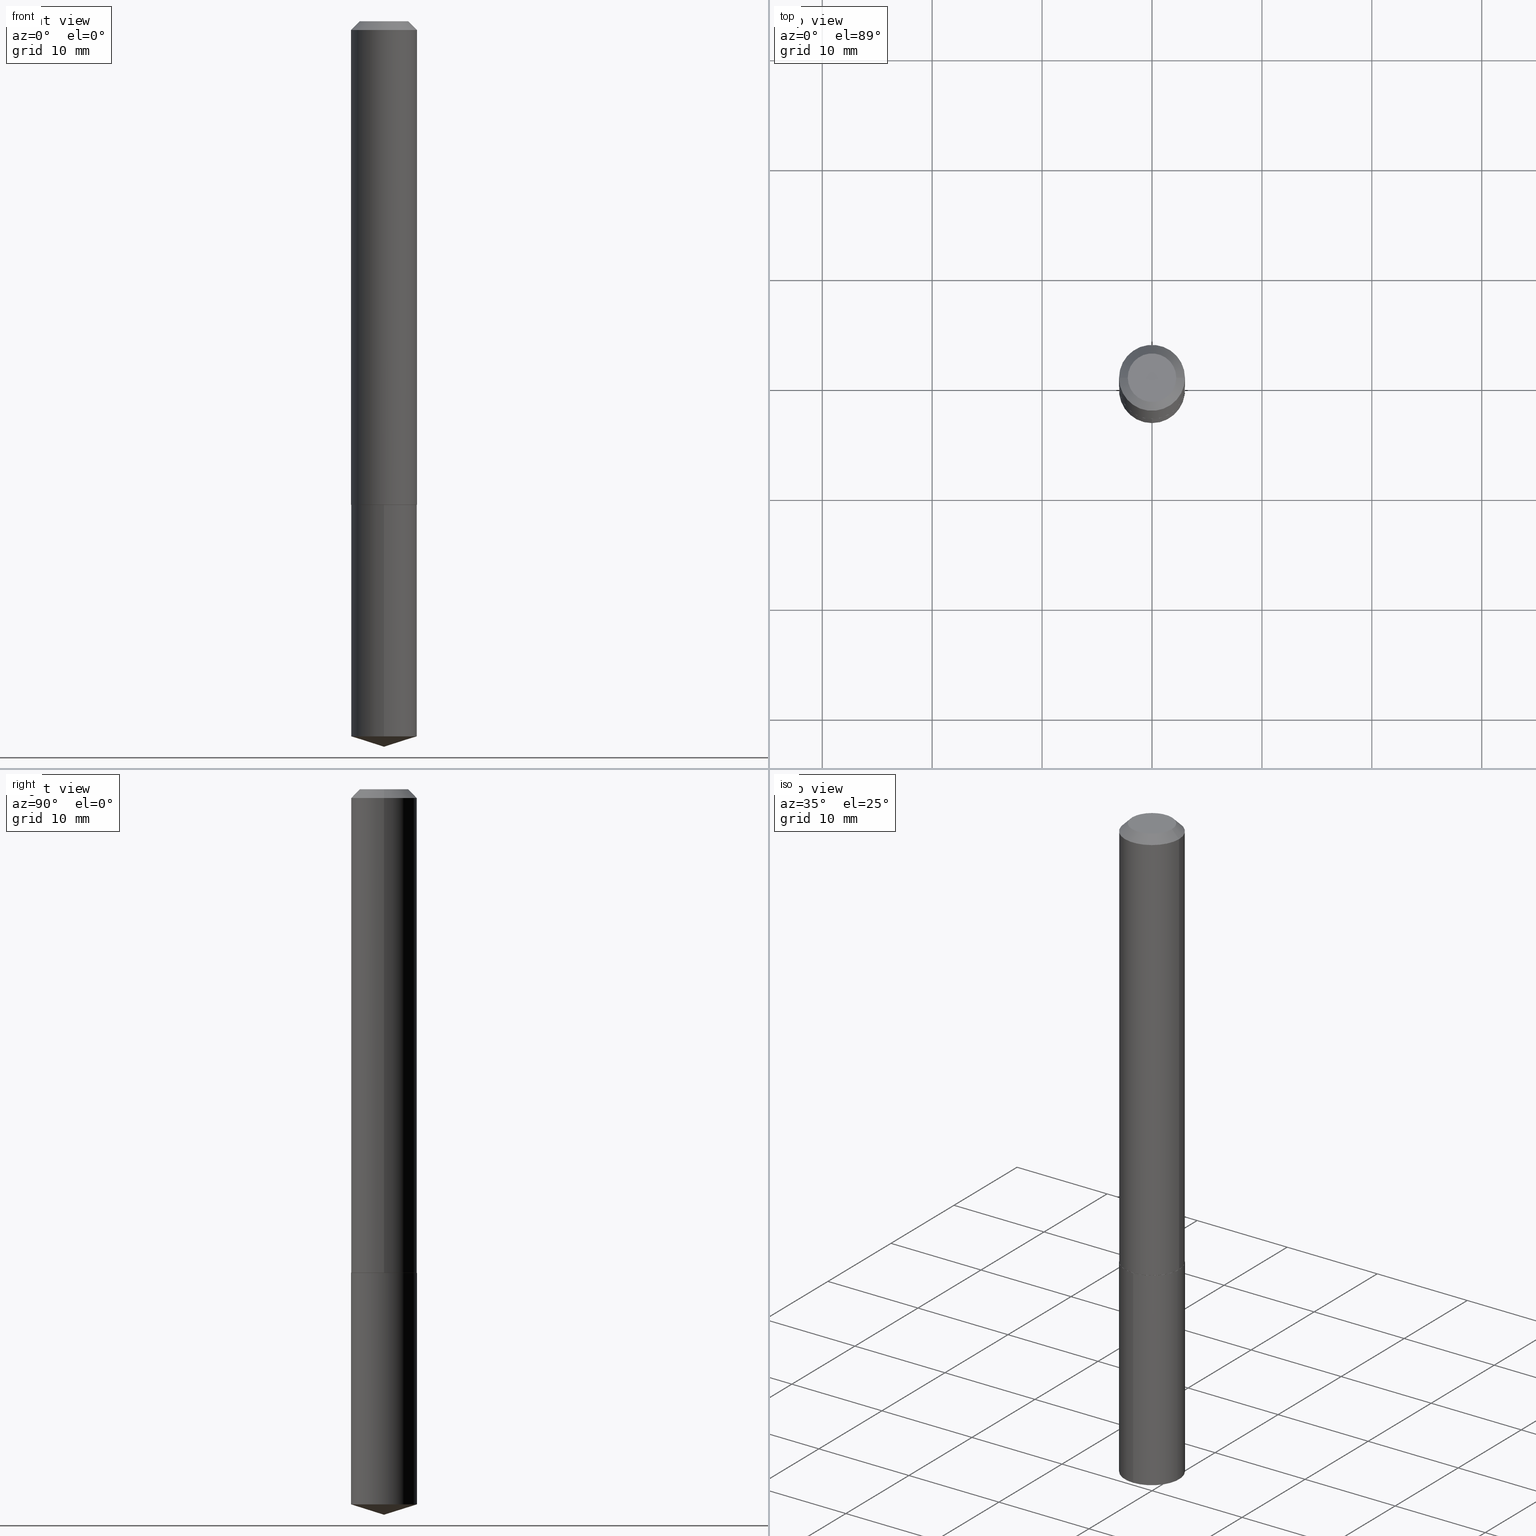
[diagram: canonical four-view strip — front | top / right | iso, engineering-drawing reading convention]
A machine part, canonical four-view strip (front | top / right | iso — engineering-drawing reading convention). The complete STEP part file that produces these views, byte-faithful:
ISO-10303-21;
HEADER;
FILE_DESCRIPTION (( 'STEP AP203' ),
    '1' );
FILE_NAME ('50017.STEP',
    '2024-04-22T18:10:48',
    ( '' ),
    ( '' ),
    'SwSTEP 2.0',
    'SolidWorks 2023',
    '' );
FILE_SCHEMA (( 'CONFIG_CONTROL_DESIGN' ));
ENDSEC;

DATA;
#1 = DIRECTION ( 'NONE',  ( -2.445468806185136597E-29, 3.491481338843145583E-15, 1.000000000000000000 ) ) ;
#2 = DIRECTION ( 'NONE',  ( -2.446120480058821266E-29, 3.490548104765055762E-15, 1.000000000000000000 ) ) ;
#3 = EDGE_CURVE ( 'NONE', #235, #177, #279, .T. ) ;
#4 = EDGE_CURVE ( 'NONE', #62, #379, #165, .T. ) ;
#5 = PRODUCT ( '50017', '50017', '', ( #143 ) ) ;
#6 = CARTESIAN_POINT ( 'NONE',  ( 6.355999455384841064E-29, -9.069840195421522145E-15, -2.598400000000000265 ) ) ;
#7 = CIRCLE ( 'NONE', #189, 0.1180999999999999966 ) ;
#8 = LOCAL_TIME ( 14, 10, 48.00000000000000000, #328 ) ;
#9 = DIRECTION ( 'NONE',  ( -6.982962677686265922E-15, -1.000000000000000000, 4.626330217890369336E-15 ) ) ;
#10 = CARTESIAN_POINT ( 'NONE',  ( -8.246878922347056641E-16, -0.1181000000000060474, -1.732199999999999074 ) ) ;
#11 = DIRECTION ( 'NONE',  ( -2.446120480058821266E-29, 3.490548104765055762E-15, 1.000000000000000000 ) ) ;
#12 = APPROVAL ( #345, 'UNSPECIFIED' ) ;
#13 = AXIS2_PLACEMENT_3D ( 'NONE', #268, #383, #202 ) ;
#14 = DIRECTION ( 'NONE',  ( 1.000000000000000000, -6.982962677686269077E-15, 0.000000000000000000 ) ) ;
#15 = ADVANCED_FACE ( 'NONE', ( #334 ), #88, .F. ) ;
#16 = DATE_AND_TIME ( #27, #342 ) ;
#17 = EDGE_CURVE ( 'NONE', #121, #50, #291, .T. ) ;
#18 = LINE ( 'NONE', #112, #36 ) ;
#19 = VERTEX_POINT ( 'NONE', #307 ) ;
#20 = DIRECTION ( 'NONE',  ( 1.000000000000000000, -6.982962677686267499E-15, 0.000000000000000000 ) ) ;
#21 = ORIENTED_EDGE ( 'NONE', *, *, #214, .F. ) ;
#22 = AXIS2_PLACEMENT_3D ( 'NONE', #213, #2, #188 ) ;
#23 = VECTOR ( 'NONE', #131, 39.37007874015748143 ) ;
#24 = PERSON_AND_ORGANIZATION_ROLE ( 'classification_officer' ) ;
#25 = CARTESIAN_POINT ( 'NONE',  ( 4.236041066073891926E-29, -6.047943975144094411E-15, -1.732199999999999296 ) ) ;
#26 = ORIENTED_EDGE ( 'NONE', *, *, #146, .T. ) ;
#27 = CALENDAR_DATE ( 2024, 22, 4 ) ;
#28 = DIRECTION ( 'NONE',  ( 1.000000000000000000, -6.982962677686266711E-15, 4.876176775795935793E-29 ) ) ;
#29 = EDGE_LOOP ( 'NONE', ( #171, #178 ) ) ;
#30 = CIRCLE ( 'NONE', #237, 0.1176000000000001350 ) ;
#31 = ORIENTED_EDGE ( 'NONE', *, *, #63, .F. ) ;
#32 = EDGE_CURVE ( 'NONE', #324, #19, #300, .T. ) ;
#33 = CARTESIAN_POINT ( 'NONE',  ( 4.236041066073892487E-29, -6.047943975144095988E-15, -1.732199999999999518 ) ) ;
#34 = DIRECTION ( 'NONE',  ( -2.445468806185136597E-29, 3.491481338843145583E-15, 1.000000000000000000 ) ) ;
#35 = CLOSED_SHELL ( 'NONE', ( #367, #339, #90, #119, #15 ) ) ;
#36 = VECTOR ( 'NONE', #136, 39.37007874015748143 ) ;
#37 = ADVANCED_FACE ( 'NONE', ( #64 ), #216, .T. ) ;
#38 = CARTESIAN_POINT ( 'NONE',  ( 0.1181000000000002187, -6.870886126709424325E-15, -1.731699999999999795 ) ) ;
#39 = ADVANCED_FACE ( 'NONE', ( #364 ), #309, .T. ) ;
#40 = ADVANCED_BREP_SHAPE_REPRESENTATION ( '50017', ( #327, #193, #248 ), #253 ) ;
#41 = CARTESIAN_POINT ( 'NONE',  ( 6.263784958690239673E-29, -8.941479947317758839E-15, -2.561163213033392783 ) ) ;
#42 = EDGE_CURVE ( 'NONE', #177, #82, #207, .T. ) ;
#43 = CARTESIAN_POINT ( 'NONE',  ( 0.1180999999999999966, -9.193336053756670343E-16, -0.03125000000000021511 ) ) ;
#44 = CIRCLE ( 'NONE', #266, 0.1180999999999999966 ) ;
#45 = DIRECTION ( 'NONE',  ( 1.000000000000000000, -6.982962677686266711E-15, 0.000000000000000000 ) ) ;
#46 = CARTESIAN_POINT ( 'NONE',  ( -0.1180999999999999966, 7.155791003958990633E-16, -0.03125000000000021511 ) ) ;
#47 = ORIENTED_EDGE ( 'NONE', *, *, #4, .F. ) ;
#48 = FACE_OUTER_BOUND ( 'NONE', #86, .T. ) ;
#49 = ADVANCED_FACE ( 'NONE', ( #313 ), #69, .T. ) ;
#50 = VERTEX_POINT ( 'NONE', #335 ) ;
#51 = ADVANCED_FACE ( 'NONE', ( #365 ), #139, .T. ) ;
#52 = CIRCLE ( 'NONE', #363, 0.1180999999999999966 ) ;
#53 = APPLICATION_PROTOCOL_DEFINITION ( 'international standard', 'config_control_design', 1994, #264 ) ;
#54 = ORIENTED_EDGE ( 'NONE', *, *, #224, .T. ) ;
#55 = SECURITY_CLASSIFICATION_LEVEL ( 'unclassified' ) ;
#56 = CYLINDRICAL_SURFACE ( 'NONE', #13, 0.1180999999999999966 ) ;
#57 = ORIENTED_EDGE ( 'NONE', *, *, #76, .T. ) ;
#58 = AXIS2_PLACEMENT_3D ( 'NONE', #294, #296, #378 ) ;
#59 = PERSON_AND_ORGANIZATION ( #290, #166 ) ;
#60 = PRODUCT_RELATED_PRODUCT_CATEGORY ( 'detail', '', ( #5 ) ) ;
#61 = EDGE_LOOP ( 'NONE', ( #122, #376, #308, #358 ) ) ;
#62 = VERTEX_POINT ( 'NONE', #370 ) ;
#63 = EDGE_CURVE ( 'NONE', #121, #82, #336, .T. ) ;
#64 = FACE_OUTER_BOUND ( 'NONE', #226, .T. ) ;
#65 = CC_DESIGN_PERSON_AND_ORGANIZATION_ASSIGNMENT ( #323, #298, ( #5 ) ) ;
#66 = EDGE_LOOP ( 'NONE', ( #200, #180, #326, #174 ) ) ;
#67 = CARTESIAN_POINT ( 'NONE',  ( 0.000000000000000000, 0.000000000000000000, 0.000000000000000000 ) ) ;
#68 = DIRECTION ( 'NONE',  ( -1.000000000000000000, 6.982962677686266711E-15, 0.000000000000000000 ) ) ;
#69 = CYLINDRICAL_SURFACE ( 'NONE', #107, 0.1181000000000001077 ) ;
#70 = DIRECTION ( 'NONE',  ( -2.445468806185136597E-29, 3.491481338843145583E-15, 1.000000000000000000 ) ) ;
#71 = EDGE_CURVE ( 'NONE', #82, #208, #315, .T. ) ;
#72 = AXIS2_PLACEMENT_3D ( 'NONE', #175, #275, #120 ) ;
#73 = CONICAL_SURFACE ( 'NONE', #306, 0.1181000000000002187, 0.7853981633979093546 ) ;
#74 = DIRECTION ( 'NONE',  ( -6.982962677686265922E-15, -1.000000000000000000, 4.626330217890369336E-15 ) ) ;
#75 = DIRECTION ( 'NONE',  ( -2.445468806185136597E-29, 3.491481338843145583E-15, 1.000000000000000000 ) ) ;
#76 = EDGE_CURVE ( 'NONE', #50, #121, #195, .T. ) ;
#77 = DIRECTION ( 'NONE',  ( -1.000000000000000000, 6.982962677686265922E-15, -4.876176775795935793E-29 ) ) ;
#78 = DIRECTION ( 'NONE',  ( -2.445468806185136597E-29, 3.491481338843145583E-15, 1.000000000000000000 ) ) ;
#79 = CC_DESIGN_PERSON_AND_ORGANIZATION_ASSIGNMENT ( #169, #104, ( #271 ) ) ;
#80 = AXIS2_PLACEMENT_3D ( 'NONE', #102, #258, #170 ) ;
#81 = CALENDAR_DATE ( 2024, 22, 4 ) ;
#82 = VERTEX_POINT ( 'NONE', #338 ) ;
#83 = APPROVAL_STATUS ( 'not_yet_approved' ) ;
#84 = FACE_OUTER_BOUND ( 'NONE', #297, .T. ) ;
#85 = ORIENTED_EDGE ( 'NONE', *, *, #118, .F. ) ;
#86 = EDGE_LOOP ( 'NONE', ( #92, #47 ) ) ;
#87 = PERSON_AND_ORGANIZATION ( #290, #166 ) ;
#88 = PLANE ( 'NONE',  #380 ) ;
#89 = EDGE_CURVE ( 'NONE', #147, #324, #316, .T. ) ;
#90 = ADVANCED_FACE ( 'NONE', ( #246 ), #347, .T. ) ;
#91 = ORIENTED_EDGE ( 'NONE', *, *, #63, .T. ) ;
#92 = ORIENTED_EDGE ( 'NONE', *, *, #329, .F. ) ;
#93 = AXIS2_PLACEMENT_3D ( 'NONE', #179, #1, #241 ) ;
#94 = ORIENTED_EDGE ( 'NONE', *, *, #4, .T. ) ;
#95 = CARTESIAN_POINT ( 'NONE',  ( 0.1181000000000002187, -6.870886126709424325E-15, -1.731699999999999795 ) ) ;
#96 = CYLINDRICAL_SURFACE ( 'NONE', #211, 0.1180999999999999966 ) ;
#97 = PRODUCT_DEFINITION_FORMATION_WITH_SPECIFIED_SOURCE ( 'ANY', '', #5, .NOT_KNOWN. ) ;
#98 = DIRECTION ( 'NONE',  ( -2.445468806185136877E-29, 3.491481338843145188E-15, 1.000000000000000000 ) ) ;
#99 = CARTESIAN_POINT ( 'NONE',  ( 6.356019252389038443E-29, -9.069840195421522145E-15, -2.598400000000000265 ) ) ;
#100 = CARTESIAN_POINT ( 'NONE',  ( -0.1180999999999999966, -2.238502542224082018E-15, -0.03125000000000021511 ) ) ;
#101 = LOCAL_TIME ( 14, 10, 48.00000000000000000, #201 ) ;
#102 = CARTESIAN_POINT ( 'NONE',  ( 7.045915830409125999E-29, -2.024043384476385914E-15, -1.732199999999999518 ) ) ;
#103 = EDGE_CURVE ( 'NONE', #360, #324, #7, .T. ) ;
#104 = PERSON_AND_ORGANIZATION_ROLE ( 'creator' ) ;
#105 = CARTESIAN_POINT ( 'NONE',  ( -0.1181000000000002187, -5.207047263541994710E-15, -1.731699999999999795 ) ) ;
#106 = PERSON_AND_ORGANIZATION ( #290, #166 ) ;
#107 = AXIS2_PLACEMENT_3D ( 'NONE', #67, #162, #249 ) ;
#108 = CARTESIAN_POINT ( 'NONE',  ( 8.391509709327409115E-16, 0.1180999999999910316, -2.561163213033393227 ) ) ;
#109 = APPROVAL_PERSON_ORGANIZATION ( #106, #388, #199 ) ;
#110 = ORIENTED_EDGE ( 'NONE', *, *, #76, .F. ) ;
#111 = APPROVAL_STATUS ( 'not_yet_approved' ) ;
#112 = CARTESIAN_POINT ( 'NONE',  ( -8.246878922347056641E-16, -0.1181000000000060474, -1.732199999999999074 ) ) ;
#113 = APPLICATION_CONTEXT ( 'configuration controlled 3d designs of mechanical parts and assemblies' ) ;
#114 = APPLICATION_PROTOCOL_DEFINITION ( 'international standard', 'config_control_design', 1994, #113 ) ;
#115 = CARTESIAN_POINT ( 'NONE',  ( 0.000000000000000000, 0.000000000000000000, 0.000000000000000000 ) ) ;
#116 = ORIENTED_EDGE ( 'NONE', *, *, #206, .T. ) ;
#117 = ORIENTED_EDGE ( 'NONE', *, *, #3, .F. ) ;
#118 = EDGE_CURVE ( 'NONE', #50, #208, #126, .T. ) ;
#119 = ADVANCED_FACE ( 'NONE', ( #129 ), #96, .T. ) ;
#120 = DIRECTION ( 'NONE',  ( 1.000000000000000000, -6.982962677686267499E-15, 0.000000000000000000 ) ) ;
#121 = VERTEX_POINT ( 'NONE', #284 ) ;
#122 = ORIENTED_EDGE ( 'NONE', *, *, #148, .F. ) ;
#123 = DIRECTION ( 'NONE',  ( -2.445468806185136597E-29, 3.491481338843145583E-15, 1.000000000000000000 ) ) ;
#124 = CC_DESIGN_DATE_AND_TIME_ASSIGNMENT ( #256, #227, ( #127 ) ) ;
#125 = CARTESIAN_POINT ( 'NONE',  ( -0.1181000000000001077, 8.391509709326790846E-16, -5.809262341591049389E-30 ) ) ;
#126 = LINE ( 'NONE', #46, #381 ) ;
#127 = SECURITY_CLASSIFICATION ( '', '', #55 ) ;
#128 = AXIS2_PLACEMENT_3D ( 'NONE', #261, #232, #344 ) ;
#129 = FACE_OUTER_BOUND ( 'NONE', #295, .T. ) ;
#130 = CARTESIAN_POINT ( 'NONE',  ( 7.642090019328603538E-31, -1.091087918388490390E-16, -0.03125000000000021511 ) ) ;
#131 = DIRECTION ( 'NONE',  ( -2.445468806185136877E-29, 3.491481338843145188E-15, 1.000000000000000000 ) ) ;
#132 = CC_DESIGN_PERSON_AND_ORGANIZATION_ASSIGNMENT ( #59, #233, ( #97 ) ) ;
#133 = COORDINATED_UNIVERSAL_TIME_OFFSET ( 5, 0, .BEHIND. ) ;
#134 = LENGTH_MEASURE_WITH_UNIT ( LENGTH_MEASURE( 0.02539999999999999897 ), #173 );
#135 = PERSON_AND_ORGANIZATION ( #290, #166 ) ;
#136 = DIRECTION ( 'NONE',  ( -2.446120480058821547E-29, 3.490548104765055762E-15, 1.000000000000000000 ) ) ;
#137 = ORIENTED_EDGE ( 'NONE', *, *, #42, .F. ) ;
#138 = COORDINATED_UNIVERSAL_TIME_OFFSET ( 5, 0, .BEHIND. ) ;
#139 = CONICAL_SURFACE ( 'NONE', #252, 0.1180999999999999966, 0.7853981633974449483 ) ;
#140 = CARTESIAN_POINT ( 'NONE',  ( -8.246878922346854496E-16, -0.1181000000000089617, -2.561163213033392339 ) ) ;
#141 = ORIENTED_EDGE ( 'NONE', *, *, #242, .T. ) ;
#142 = CALENDAR_DATE ( 2024, 22, 4 ) ;
#143 = MECHANICAL_CONTEXT ( 'NONE', #264, 'mechanical' ) ;
#144 = ORIENTED_EDGE ( 'NONE', *, *, #255, .F. ) ;
#145 = PERSON_AND_ORGANIZATION_ROLE ( 'creator' ) ;
#146 = EDGE_CURVE ( 'NONE', #379, #177, #311, .T. ) ;
#147 = VERTEX_POINT ( 'NONE', #6 ) ;
#148 = EDGE_CURVE ( 'NONE', #235, #208, #282, .T. ) ;
#149 = ORIENTED_EDGE ( 'NONE', *, *, #148, .T. ) ;
#150 = CIRCLE ( 'NONE', #292, 0.1180999999999999966 ) ;
#151 = APPROVAL ( #111, 'UNSPECIFIED' ) ;
#152 = CARTESIAN_POINT ( 'NONE',  ( 8.391509709327204997E-16, 0.1180999999999939598, -1.732200000000000184 ) ) ;
#153 = ORIENTED_EDGE ( 'NONE', *, *, #214, .T. ) ;
#154 = CC_DESIGN_DATE_AND_TIME_ASSIGNMENT ( #205, #269, ( #271 ) ) ;
#155 = DIRECTION ( 'NONE',  ( -2.446120480058821547E-29, 3.490548104765055762E-15, 1.000000000000000000 ) ) ;
#156 = VECTOR ( 'NONE', #283, 39.37007874015748143 ) ;
#157 = CARTESIAN_POINT ( 'NONE',  ( -1.665128563525584940E-46, 2.377362283918716598E-32, 6.809036203259281235E-18 ) ) ;
#158 = DIRECTION ( 'NONE',  ( 6.776566513254257349E-15, 0.9537169507482289310, 0.3007057995042669574 ) ) ;
#159 = CARTESIAN_POINT ( 'NONE',  ( 4.236041066073892487E-29, -6.047943975144095988E-15, -1.732199999999999518 ) ) ;
#160 = CC_DESIGN_APPROVAL ( #151, ( #127 ) ) ;
#161 = FACE_OUTER_BOUND ( 'NONE', #322, .T. ) ;
#162 = DIRECTION ( 'NONE',  ( -2.445468806185136597E-29, 3.491481338843145583E-15, 1.000000000000000000 ) ) ;
#163 =( NAMED_UNIT ( * ) PLANE_ANGLE_UNIT ( ) SI_UNIT ( $, .RADIAN. ) );
#164 = EDGE_LOOP ( 'NONE', ( #303, #352, #387, #230 ) ) ;
#165 = CIRCLE ( 'NONE', #247, 0.1176000000000001350 ) ;
#166 = ORGANIZATION ( 'UNSPECIFIED', 'UNSPECIFIED', '' ) ;
#167 = FACE_OUTER_BOUND ( 'NONE', #66, .T. ) ;
#168 = ORIENTED_EDGE ( 'NONE', *, *, #186, .T. ) ;
#169 = PERSON_AND_ORGANIZATION ( #290, #166 ) ;
#170 = DIRECTION ( 'NONE',  ( 1.000000000000000000, -6.982962677686265922E-15, 4.876176775795935793E-29 ) ) ;
#171 = ORIENTED_EDGE ( 'NONE', *, *, #286, .T. ) ;
#172 = PERSON_AND_ORGANIZATION ( #290, #166 ) ;
#173 =( LENGTH_UNIT ( ) NAMED_UNIT ( * ) SI_UNIT ( $, .METRE. ) );
#174 = ORIENTED_EDGE ( 'NONE', *, *, #242, .F. ) ;
#175 = CARTESIAN_POINT ( 'NONE',  ( 4.234818331670800246E-29, -6.046198234474674485E-15, -1.731699999999999795 ) ) ;
#176 = CALENDAR_DATE ( 2024, 22, 4 ) ;
#177 = VERTEX_POINT ( 'NONE', #95 ) ;
#178 = ORIENTED_EDGE ( 'NONE', *, *, #255, .T. ) ;
#179 = CARTESIAN_POINT ( 'NONE',  ( 4.234818331670800246E-29, -6.046198234474674485E-15, -1.731699999999999795 ) ) ;
#180 = ORIENTED_EDGE ( 'NONE', *, *, #32, .T. ) ;
#181 = DIRECTION ( 'NONE',  ( -2.445468806185136597E-29, 3.491481338843145583E-15, 1.000000000000000000 ) ) ;
#182 = AXIS2_PLACEMENT_3D ( 'NONE', #225, #222, #77 ) ;
#183 = PRODUCT_DEFINITION_SHAPE ( 'NONE', 'NONE',  #271 ) ;
#184 = ADVANCED_FACE ( 'NONE', ( #161 ), #221, .T. ) ;
#185 = DIRECTION ( 'NONE',  ( -2.445468806185136597E-29, 3.491481338843145583E-15, 1.000000000000000000 ) ) ;
#186 = EDGE_CURVE ( 'NONE', #147, #360, #340, .T. ) ;
#187 = CARTESIAN_POINT ( 'NONE',  ( 7.642090019328603538E-31, -1.091087918388490390E-16, -0.03125000000000021511 ) ) ;
#188 = DIRECTION ( 'NONE',  ( -6.982962677686265922E-15, -1.000000000000000000, 3.500519750498701277E-15 ) ) ;
#189 = AXIS2_PLACEMENT_3D ( 'NONE', #41, #312, #366 ) ;
#190 = VECTOR ( 'NONE', #346, 39.37007874015748143 ) ;
#191 = DIRECTION ( 'NONE',  ( 1.000000000000000000, -6.982962677686266711E-15, 4.875959881687004012E-29 ) ) ;
#192 = CARTESIAN_POINT ( 'NONE',  ( 4.234818331670800246E-29, -6.046198234474674485E-15, -1.731699999999999795 ) ) ;
#193 = MANIFOLD_SOLID_BREP ( 'Body-Move/Copy2[2]', #305 ) ;
#194 = PLANE ( 'NONE',  #80 ) ;
#195 = CIRCLE ( 'NONE', #273, 0.08684999999999999665 ) ;
#196 = CIRCLE ( 'NONE', #58, 0.1181000000000002187 ) ;
#197 = DIRECTION ( 'NONE',  ( -6.982962677686265922E-15, -1.000000000000000000, 3.500519750498701277E-15 ) ) ;
#198 = VERTEX_POINT ( 'NONE', #10 ) ;
#199 = APPROVAL_ROLE ( '' ) ;
#200 = ORIENTED_EDGE ( 'NONE', *, *, #103, .T. ) ;
#201 = COORDINATED_UNIVERSAL_TIME_OFFSET ( 5, 0, .BEHIND. ) ;
#202 = DIRECTION ( 'NONE',  ( -6.982962677686265922E-15, -1.000000000000000000, 4.626330217890369336E-15 ) ) ;
#203 = LOCAL_TIME ( 14, 10, 48.00000000000000000, #133 ) ;
#204 = EDGE_LOOP ( 'NONE', ( #54, #149, #244, #137 ) ) ;
#205 = DATE_AND_TIME ( #176, #285 ) ;
#206 = EDGE_CURVE ( 'NONE', #208, #82, #150, .T. ) ;
#207 = LINE ( 'NONE', #330, #373 ) ;
#208 = VERTEX_POINT ( 'NONE', #100 ) ;
#209 = AXIS2_PLACEMENT_3D ( 'NONE', #333, #361, #362 ) ;
#210 = ORIENTED_EDGE ( 'NONE', *, *, #118, .T. ) ;
#211 = AXIS2_PLACEMENT_3D ( 'NONE', #159, #11, #9 ) ;
#212 = CARTESIAN_POINT ( 'NONE',  ( 4.236041066073891926E-29, -6.047943975144094411E-15, -1.732199999999999296 ) ) ;
#213 = CARTESIAN_POINT ( 'NONE',  ( -8.994908528192677186E-28, 1.283516969874161106E-13, 36.77167874015748339 ) ) ;
#214 = EDGE_CURVE ( 'NONE', #324, #360, #44, .T. ) ;
#215 = CARTESIAN_POINT ( 'NONE',  ( 7.642090019328603538E-31, -1.091087918388490390E-16, -0.03125000000000021511 ) ) ;
#216 = CONICAL_SURFACE ( 'NONE', #93, 0.1181000000000002187, 0.7853981633979093546 ) ;
#217 = VECTOR ( 'NONE', #245, 39.37007874015748143 ) ;
#218 = DIRECTION ( 'NONE',  ( 2.445468806185136597E-29, -3.491481338843145583E-15, -1.000000000000000000 ) ) ;
#219 = DIRECTION ( 'NONE',  ( 2.445468806185136597E-29, -3.491481338843145583E-15, -1.000000000000000000 ) ) ;
#220 = CARTESIAN_POINT ( 'NONE',  ( 6.263784958690239673E-29, -8.941479947317758839E-15, -2.561163213033392783 ) ) ;
#221 = CONICAL_SURFACE ( 'NONE', #243, 0.1180999999999999966, 0.7853981633974449483 ) ;
#222 = DIRECTION ( 'NONE',  ( 2.438088387897960049E-29, -3.491481338843145188E-15, -1.000000000000000000 ) ) ;
#223 = DIRECTION ( 'NONE',  ( -6.982962677686265922E-15, -1.000000000000000000, 4.626330217890369336E-15 ) ) ;
#224 = EDGE_CURVE ( 'NONE', #177, #235, #196, .T. ) ;
#225 = CARTESIAN_POINT ( 'NONE',  ( -8.325642817627924699E-47, 1.188681141959358299E-32, 3.404518101629640617E-18 ) ) ;
#226 = EDGE_LOOP ( 'NONE', ( #238, #94, #26, #117 ) ) ;
#227 = DATE_TIME_ROLE ( 'classification_date' ) ;
#228 = CC_DESIGN_SECURITY_CLASSIFICATION ( #127, ( #97 ) ) ;
#229 = FACE_OUTER_BOUND ( 'NONE', #270, .T. ) ;
#230 = ORIENTED_EDGE ( 'NONE', *, *, #146, .F. ) ;
#231 = DATE_AND_TIME ( #81, #101 ) ;
#232 = DIRECTION ( 'NONE',  ( -2.446120480058821266E-29, 3.490548104765055762E-15, 1.000000000000000000 ) ) ;
#233 = PERSON_AND_ORGANIZATION_ROLE ( 'design_supplier' ) ;
#234 = DIRECTION ( 'NONE',  ( 0.000000000000000000, 0.000000000000000000, 1.000000000000000000 ) ) ;
#235 = VERTEX_POINT ( 'NONE', #343 ) ;
#236 = AXIS2_PLACEMENT_3D ( 'NONE', #130, #181, #45 ) ;
#237 = AXIS2_PLACEMENT_3D ( 'NONE', #25, #75, #14 ) ;
#238 = ORIENTED_EDGE ( 'NONE', *, *, #302, .F. ) ;
#239 = DIRECTION ( 'NONE',  ( 1.000000000000000000, -6.982962677686269077E-15, 0.000000000000000000 ) ) ;
#240 = EDGE_LOOP ( 'NONE', ( #384, #168, #21 ) ) ;
#241 = DIRECTION ( 'NONE',  ( 1.000000000000000000, -6.982962677686267499E-15, 0.000000000000000000 ) ) ;
#242 = EDGE_CURVE ( 'NONE', #360, #198, #18, .T. ) ;
#243 = AXIS2_PLACEMENT_3D ( 'NONE', #187, #219, #250 ) ;
#244 = ORIENTED_EDGE ( 'NONE', *, *, #71, .F. ) ;
#245 = DIRECTION ( 'NONE',  ( -6.659769872151632089E-15, -0.9537169507482267106, 0.3007057995042736187 ) ) ;
#246 = FACE_OUTER_BOUND ( 'NONE', #240, .T. ) ;
#247 = AXIS2_PLACEMENT_3D ( 'NONE', #212, #34, #239 ) ;
#248 = AXIS2_PLACEMENT_3D ( 'NONE', #115, #234, #357 ) ;
#249 = DIRECTION ( 'NONE',  ( 1.000000000000000000, -6.982962677686266711E-15, 4.876176775795935793E-29 ) ) ;
#250 = DIRECTION ( 'NONE',  ( -1.000000000000000000, 6.982962677686266711E-15, 0.000000000000000000 ) ) ;
#251 = CARTESIAN_POINT ( 'NONE',  ( 4.236041066073892487E-29, -6.047943975144095988E-15, -1.732199999999999518 ) ) ;
#252 = AXIS2_PLACEMENT_3D ( 'NONE', #314, #218, #68 ) ;
#253 =( GEOMETRIC_REPRESENTATION_CONTEXT ( 3 ) GLOBAL_UNCERTAINTY_ASSIGNED_CONTEXT ( ( #267 ) ) GLOBAL_UNIT_ASSIGNED_CONTEXT ( ( #356, #163, #351 ) ) REPRESENTATION_CONTEXT ( 'NONE', 'WORKASPACE' ) );
#254 = PLANE ( 'NONE',  #182 ) ;
#255 = EDGE_CURVE ( 'NONE', #19, #198, #325, .T. ) ;
#256 = DATE_AND_TIME ( #301, #203 ) ;
#257 = ADVANCED_FACE ( 'NONE', ( #48 ), #194, .F. ) ;
#258 = DIRECTION ( 'NONE',  ( -2.438088387897960049E-29, 3.491481338843145188E-15, 1.000000000000000000 ) ) ;
#259 = ORIENTED_EDGE ( 'NONE', *, *, #89, .T. ) ;
#260 = SHAPE_DEFINITION_REPRESENTATION ( #183, #40 ) ;
#261 = CARTESIAN_POINT ( 'NONE',  ( 4.236041066073892487E-29, -6.047943975144095988E-15, -1.732199999999999518 ) ) ;
#262 = ORIENTED_EDGE ( 'NONE', *, *, #186, .F. ) ;
#263 = APPROVAL_DATE_TIME ( #231, #388 ) ;
#264 = APPLICATION_CONTEXT ( 'configuration controlled 3d designs of mechanical parts and assemblies' ) ;
#265 = VECTOR ( 'NONE', #155, 39.37007874015748143 ) ;
#266 = AXIS2_PLACEMENT_3D ( 'NONE', #220, #341, #74 ) ;
#267 = UNCERTAINTY_MEASURE_WITH_UNIT (LENGTH_MEASURE( 1.000000000000000082E-05 ), #356, 'distance_accuracy_value', 'NONE');
#268 = CARTESIAN_POINT ( 'NONE',  ( 4.236041066073892487E-29, -6.047943975144095988E-15, -1.732199999999999518 ) ) ;
#269 = DATE_TIME_ROLE ( 'creation_date' ) ;
#270 = EDGE_LOOP ( 'NONE', ( #262, #259, #331 ) ) ;
#271 = PRODUCT_DEFINITION ( 'UNKNOWN', '', #97, #355 ) ;
#272 = ORIENTED_EDGE ( 'NONE', *, *, #32, .F. ) ;
#273 = AXIS2_PLACEMENT_3D ( 'NONE', #157, #185, #191 ) ;
#274 = CC_DESIGN_APPROVAL ( #12, ( #271 ) ) ;
#275 = DIRECTION ( 'NONE',  ( -2.445468806185136597E-29, 3.491481338843145583E-15, 1.000000000000000000 ) ) ;
#276 = ADVANCED_FACE ( 'NONE', ( #84 ), #254, .F. ) ;
#277 = EDGE_LOOP ( 'NONE', ( #31, #110, #210, #116 ) ) ;
#278 = DIRECTION ( 'NONE',  ( 6.982962677686265922E-15, 1.000000000000000000, -3.490548104765055762E-15 ) ) ;
#279 = CIRCLE ( 'NONE', #72, 0.1181000000000002187 ) ;
#280 = CARTESIAN_POINT ( 'NONE',  ( 0.000000000000000000, 0.000000000000000000, 0.000000000000000000 ) ) ;
#281 = CONICAL_SURFACE ( 'NONE', #350, 124.8659371009151755, 1.265363707695891904 ) ;
#282 = LINE ( 'NONE', #125, #23 ) ;
#283 = DIRECTION ( 'NONE',  ( 0.7071067811868735342, -2.468850131085671645E-15, 0.7071067811862215002 ) ) ;
#284 = CARTESIAN_POINT ( 'NONE',  ( 0.08684999999999999665, -7.575839282410621061E-16, 6.809036203264050608E-18 ) ) ;
#285 = LOCAL_TIME ( 14, 10, 48.00000000000000000, #359 ) ;
#286 = EDGE_CURVE ( 'NONE', #198, #19, #52, .T. ) ;
#287 = DIRECTION ( 'NONE',  ( 0.7071067811865451302, -7.319954787623248157E-15, -0.7071067811865499042 ) ) ;
#288 = DIRECTION ( 'NONE',  ( -0.7071067811865451302, 2.468850131082231817E-15, -0.7071067811865499042 ) ) ;
#289 = DIMENSIONAL_EXPONENTS ( 1.000000000000000000, 0.000000000000000000, 0.000000000000000000, 0.000000000000000000, 0.000000000000000000, 0.000000000000000000, 0.000000000000000000 ) ;
#290 = PERSON ( 'UNSPECIFIED', 'UNSPECIFIED', 'UNSPECIFIED', ('UNSPECIFIED'), ('UNSPECIFIED'), ('UNSPECIFIED') ) ;
#291 = CIRCLE ( 'NONE', #209, 0.08684999999999999665 ) ;
#292 = AXIS2_PLACEMENT_3D ( 'NONE', #215, #70, #371 ) ;
#293 = CC_DESIGN_PERSON_AND_ORGANIZATION_ASSIGNMENT ( #377, #145, ( #97 ) ) ;
#294 = CARTESIAN_POINT ( 'NONE',  ( 4.234818331670800246E-29, -6.046198234474674485E-15, -1.731699999999999795 ) ) ;
#295 = EDGE_LOOP ( 'NONE', ( #272, #153, #141, #144 ) ) ;
#296 = DIRECTION ( 'NONE',  ( -2.445468806185136597E-29, 3.491481338843145583E-15, 1.000000000000000000 ) ) ;
#297 = EDGE_LOOP ( 'NONE', ( #57, #386 ) ) ;
#298 = PERSON_AND_ORGANIZATION_ROLE ( 'design_owner' ) ;
#299 = DIRECTION ( 'NONE',  ( -2.446120480058821266E-29, 3.490548104765055762E-15, 1.000000000000000000 ) ) ;
#300 = LINE ( 'NONE', #152, #265 ) ;
#301 = CALENDAR_DATE ( 2024, 22, 4 ) ;
#302 = EDGE_CURVE ( 'NONE', #62, #235, #375, .T. ) ;
#303 = ORIENTED_EDGE ( 'NONE', *, *, #329, .T. ) ;
#304 = VECTOR ( 'NONE', #287, 39.37007874015748143 ) ;
#305 = CLOSED_SHELL ( 'NONE', ( #184, #49, #353, #257, #37, #39, #51, #276 ) ) ;
#306 = AXIS2_PLACEMENT_3D ( 'NONE', #192, #78, #20 ) ;
#307 = CARTESIAN_POINT ( 'NONE',  ( 8.391509709327409115E-16, 0.1180999999999939321, -1.732200000000000184 ) ) ;
#308 = ORIENTED_EDGE ( 'NONE', *, *, #42, .T. ) ;
#309 = CYLINDRICAL_SURFACE ( 'NONE', #310, 0.1181000000000001077 ) ;
#310 = AXIS2_PLACEMENT_3D ( 'NONE', #280, #123, #28 ) ;
#311 = LINE ( 'NONE', #38, #156 ) ;
#312 = DIRECTION ( 'NONE',  ( -2.446120480058821266E-29, 3.490548104765055762E-15, 1.000000000000000000 ) ) ;
#313 = FACE_OUTER_BOUND ( 'NONE', #204, .T. ) ;
#314 = CARTESIAN_POINT ( 'NONE',  ( 7.642090019328603538E-31, -1.091087918388490390E-16, -0.03125000000000021511 ) ) ;
#315 = CIRCLE ( 'NONE', #236, 0.1180999999999999966 ) ;
#316 = LINE ( 'NONE', #99, #320 ) ;
#317 = CARTESIAN_POINT ( 'NONE',  ( 0.1176000000000001350, -6.869140386040000455E-15, -1.732199999999999296 ) ) ;
#318 = ORIENTED_EDGE ( 'NONE', *, *, #17, .F. ) ;
#319 = FACE_OUTER_BOUND ( 'NONE', #164, .T. ) ;
#320 = VECTOR ( 'NONE', #158, 39.37007874015748854 ) ;
#321 = APPROVAL_DATE_TIME ( #385, #151 ) ;
#322 = EDGE_LOOP ( 'NONE', ( #318, #91, #389, #85 ) ) ;
#323 = PERSON_AND_ORGANIZATION ( #290, #166 ) ;
#324 = VERTEX_POINT ( 'NONE', #108 ) ;
#325 = CIRCLE ( 'NONE', #128, 0.1180999999999999966 ) ;
#326 = ORIENTED_EDGE ( 'NONE', *, *, #286, .F. ) ;
#327 = MANIFOLD_SOLID_BREP ( 'Body-Move/Copy2[1]', #35 ) ;
#328 = COORDINATED_UNIVERSAL_TIME_OFFSET ( 5, 0, .BEHIND. ) ;
#329 = EDGE_CURVE ( 'NONE', #379, #62, #30, .T. ) ;
#330 = CARTESIAN_POINT ( 'NONE',  ( 0.1181000000000001077, -8.246878922347488542E-16, 5.758764772215005345E-30 ) ) ;
#331 = ORIENTED_EDGE ( 'NONE', *, *, #103, .F. ) ;
#332 = CC_DESIGN_PERSON_AND_ORGANIZATION_ASSIGNMENT ( #172, #24, ( #127 ) ) ;
#333 = CARTESIAN_POINT ( 'NONE',  ( -1.665128563525584940E-46, 2.377362283918716598E-32, 6.809036203259281235E-18 ) ) ;
#334 = FACE_OUTER_BOUND ( 'NONE', #29, .T. ) ;
#335 = CARTESIAN_POINT ( 'NONE',  ( -0.08684999999999999665, 6.610247044764755977E-16, 6.809036203254849285E-18 ) ) ;
#336 = LINE ( 'NONE', #43, #304 ) ;
#337 = APPROVAL_PERSON_ORGANIZATION ( #135, #12, #382 ) ;
#338 = CARTESIAN_POINT ( 'NONE',  ( 0.1180999999999999966, -9.337966840735971660E-16, -0.03125000000000021511 ) ) ;
#339 = ADVANCED_FACE ( 'NONE', ( #229 ), #281, .T. ) ;
#340 = LINE ( 'NONE', #368, #217 ) ;
#341 = DIRECTION ( 'NONE',  ( -2.446120480058821266E-29, 3.490548104765055762E-15, 1.000000000000000000 ) ) ;
#342 = LOCAL_TIME ( 14, 10, 48.00000000000000000, #138 ) ;
#343 = CARTESIAN_POINT ( 'NONE',  ( -0.1181000000000002187, -5.207047263541994710E-15, -1.731699999999999795 ) ) ;
#344 = DIRECTION ( 'NONE',  ( -6.982962677686265922E-15, -1.000000000000000000, 4.626330217890369336E-15 ) ) ;
#345 = APPROVAL_STATUS ( 'not_yet_approved' ) ;
#346 = DIRECTION ( 'NONE',  ( -0.7071067811868735342, 7.493145998871532718E-15, 0.7071067811862215002 ) ) ;
#347 = CONICAL_SURFACE ( 'NONE', #22, 124.8659371009151755, 1.265363707695891904 ) ;
#348 = APPROVAL_PERSON_ORGANIZATION ( #87, #151, #349 ) ;
#349 = APPROVAL_ROLE ( '' ) ;
#350 = AXIS2_PLACEMENT_3D ( 'NONE', #372, #374, #197 ) ;
#351 =( NAMED_UNIT ( * ) SI_UNIT ( $, .STERADIAN. ) SOLID_ANGLE_UNIT ( ) );
#352 = ORIENTED_EDGE ( 'NONE', *, *, #302, .T. ) ;
#353 = ADVANCED_FACE ( 'NONE', ( #319 ), #73, .T. ) ;
#354 = APPROVAL_DATE_TIME ( #16, #12 ) ;
#355 = DESIGN_CONTEXT ( 'detailed design', #113, 'design' ) ;
#356 =( CONVERSION_BASED_UNIT ( 'INCH', #134 ) LENGTH_UNIT ( ) NAMED_UNIT ( #289 ) );
#357 = DIRECTION ( 'NONE',  ( 1.000000000000000000, 0.000000000000000000, 0.000000000000000000 ) ) ;
#358 = ORIENTED_EDGE ( 'NONE', *, *, #206, .F. ) ;
#359 = COORDINATED_UNIVERSAL_TIME_OFFSET ( 5, 0, .BEHIND. ) ;
#360 = VERTEX_POINT ( 'NONE', #140 ) ;
#361 = DIRECTION ( 'NONE',  ( -2.445468806185136597E-29, 3.491481338843145583E-15, 1.000000000000000000 ) ) ;
#362 = DIRECTION ( 'NONE',  ( 1.000000000000000000, -6.982962677686266711E-15, 4.875959881687004012E-29 ) ) ;
#363 = AXIS2_PLACEMENT_3D ( 'NONE', #251, #299, #223 ) ;
#364 = FACE_OUTER_BOUND ( 'NONE', #61, .T. ) ;
#365 = FACE_OUTER_BOUND ( 'NONE', #277, .T. ) ;
#366 = DIRECTION ( 'NONE',  ( -6.982962677686265922E-15, -1.000000000000000000, 4.626330217890369336E-15 ) ) ;
#367 = ADVANCED_FACE ( 'NONE', ( #167 ), #56, .T. ) ;
#368 = CARTESIAN_POINT ( 'NONE',  ( 6.353741796416848714E-29, -9.073073291561657379E-15, -2.598400000000000265 ) ) ;
#369 = CC_DESIGN_APPROVAL ( #388, ( #97 ) ) ;
#370 = CARTESIAN_POINT ( 'NONE',  ( -0.1176000000000001350, -5.209696490716105911E-15, -1.732199999999999296 ) ) ;
#371 = DIRECTION ( 'NONE',  ( 1.000000000000000000, -6.982962677686266711E-15, 0.000000000000000000 ) ) ;
#372 = CARTESIAN_POINT ( 'NONE',  ( -8.994908528192677186E-28, 1.283516969874161106E-13, 36.77167874015748339 ) ) ;
#373 = VECTOR ( 'NONE', #98, 39.37007874015748143 ) ;
#374 = DIRECTION ( 'NONE',  ( -2.446120480058821266E-29, 3.490548104765055762E-15, 1.000000000000000000 ) ) ;
#375 = LINE ( 'NONE', #105, #190 ) ;
#376 = ORIENTED_EDGE ( 'NONE', *, *, #3, .T. ) ;
#377 = PERSON_AND_ORGANIZATION ( #290, #166 ) ;
#378 = DIRECTION ( 'NONE',  ( 1.000000000000000000, -6.982962677686267499E-15, 0.000000000000000000 ) ) ;
#379 = VERTEX_POINT ( 'NONE', #317 ) ;
#380 = AXIS2_PLACEMENT_3D ( 'NONE', #33, #390, #278 ) ;
#381 = VECTOR ( 'NONE', #288, 39.37007874015748143 ) ;
#382 = APPROVAL_ROLE ( '' ) ;
#383 = DIRECTION ( 'NONE',  ( -2.446120480058821266E-29, 3.490548104765055762E-15, 1.000000000000000000 ) ) ;
#384 = ORIENTED_EDGE ( 'NONE', *, *, #89, .F. ) ;
#385 = DATE_AND_TIME ( #142, #8 ) ;
#386 = ORIENTED_EDGE ( 'NONE', *, *, #17, .T. ) ;
#387 = ORIENTED_EDGE ( 'NONE', *, *, #224, .F. ) ;
#388 = APPROVAL ( #83, 'UNSPECIFIED' ) ;
#389 = ORIENTED_EDGE ( 'NONE', *, *, #71, .T. ) ;
#390 = DIRECTION ( 'NONE',  ( 2.446120480058820986E-29, -3.490548104765055762E-15, -1.000000000000000000 ) ) ;
ENDSEC;
END-ISO-10303-21;
